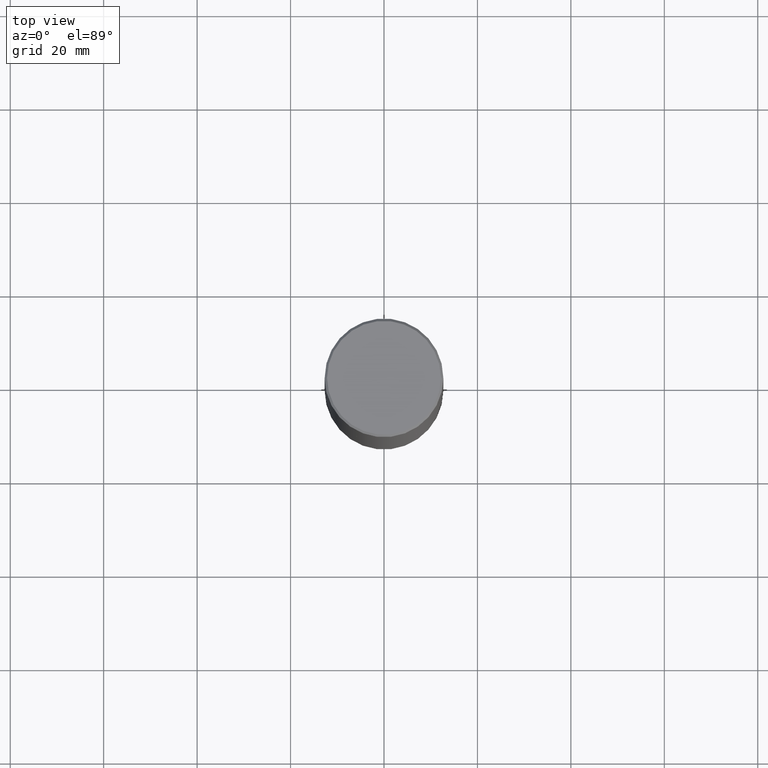
[diagram: clean part render]
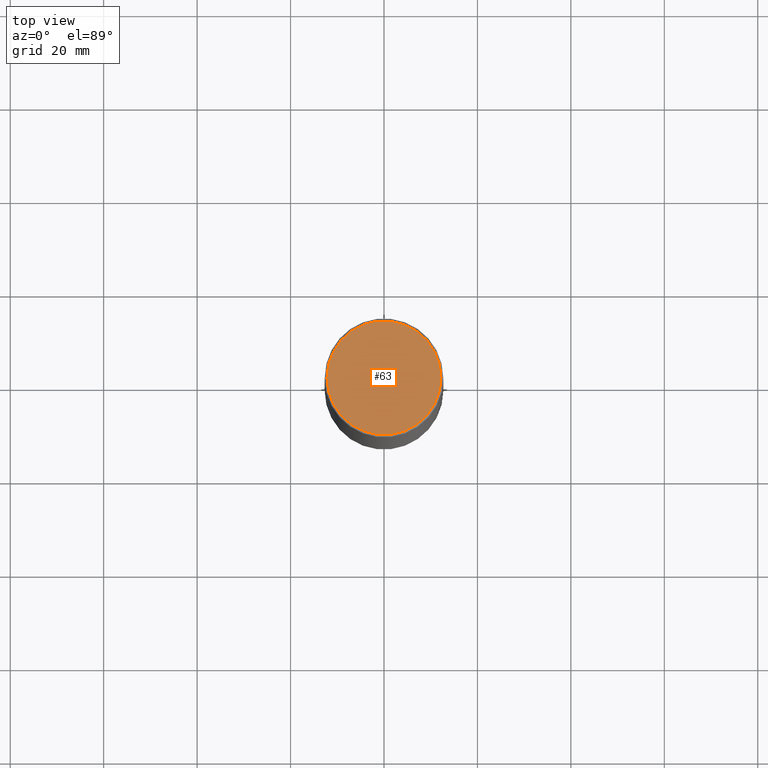
[diagram: same view with one face highlighted and labeled with its STEP entity id]
A machine part, top view. The second image highlights one B-rep face of the part: STEP entity #63.
In plain terms, the highlighted planar face has unit normal (0, -0, -1).
Its self-contained STEP definition (entity closure, byte-faithful):
#2 = ORIENTED_EDGE ( 'NONE', *, *, #165, .T. ) ;
#52 = VERTEX_POINT ( 'NONE', #304 ) ;
#60 = CIRCLE ( 'NONE', #85, 0.4799999999999995937 ) ;
#63 = ADVANCED_FACE ( 'NONE', ( #275 ), #96, .F. ) ;
#80 = CARTESIAN_POINT ( 'NONE',  ( -0.4799999999999995937, 3.386736898677836436E-15, 1.280553747027767124E-17 ) ) ;
#82 = CARTESIAN_POINT ( 'NONE',  ( -3.131554243005659264E-46, 4.471029511141341874E-32, 1.280553747030123384E-17 ) ) ;
#85 = AXIS2_PLACEMENT_3D ( 'NONE', #129, #248, #218 ) ;
#96 = PLANE ( 'NONE',  #276 ) ;
#98 = DIRECTION ( 'NONE',  ( 2.438088387897960049E-29, -3.491481338843145188E-15, -1.000000000000000000 ) ) ;
#103 = DIRECTION ( 'NONE',  ( -2.445468806185136597E-29, 3.491481338843145583E-15, 1.000000000000000000 ) ) ;
#129 = CARTESIAN_POINT ( 'NONE',  ( -3.131554243005659264E-46, 4.471029511141341874E-32, 1.280553747030123384E-17 ) ) ;
#142 = ORIENTED_EDGE ( 'NONE', *, *, #241, .T. ) ;
#165 = EDGE_CURVE ( 'NONE', #208, #52, #60, .T. ) ;
#206 = AXIS2_PLACEMENT_3D ( 'NONE', #82, #103, #366 ) ;
#208 = VERTEX_POINT ( 'NONE', #80 ) ;
#218 = DIRECTION ( 'NONE',  ( 1.000000000000000000, -6.982962677686266711E-15, 4.876036955247133327E-29 ) ) ;
#241 = EDGE_CURVE ( 'NONE', #52, #208, #271, .T. ) ;
#248 = DIRECTION ( 'NONE',  ( -2.445468806185136597E-29, 3.491481338843145583E-15, 1.000000000000000000 ) ) ;
#266 = EDGE_LOOP ( 'NONE', ( #2, #142 ) ) ;
#271 = CIRCLE ( 'NONE', #206, 0.4799999999999995937 ) ;
#273 = CARTESIAN_POINT ( 'NONE',  ( 3.351822085289404787E-15, 0.4799999999999995937, -1.669508273909557867E-15 ) ) ;
#275 = FACE_OUTER_BOUND ( 'NONE', #266, .T. ) ;
#276 = AXIS2_PLACEMENT_3D ( 'NONE', #273, #98, #329 ) ;
#304 = CARTESIAN_POINT ( 'NONE',  ( 0.4799999999999995937, -3.396558832296479338E-15, 1.280553747032483033E-17 ) ) ;
#329 = DIRECTION ( 'NONE',  ( -1.000000000000000000, 6.982962677686265922E-15, -4.876176775795935793E-29 ) ) ;
#366 = DIRECTION ( 'NONE',  ( 1.000000000000000000, -6.982962677686266711E-15, 4.876036955247133327E-29 ) ) ;